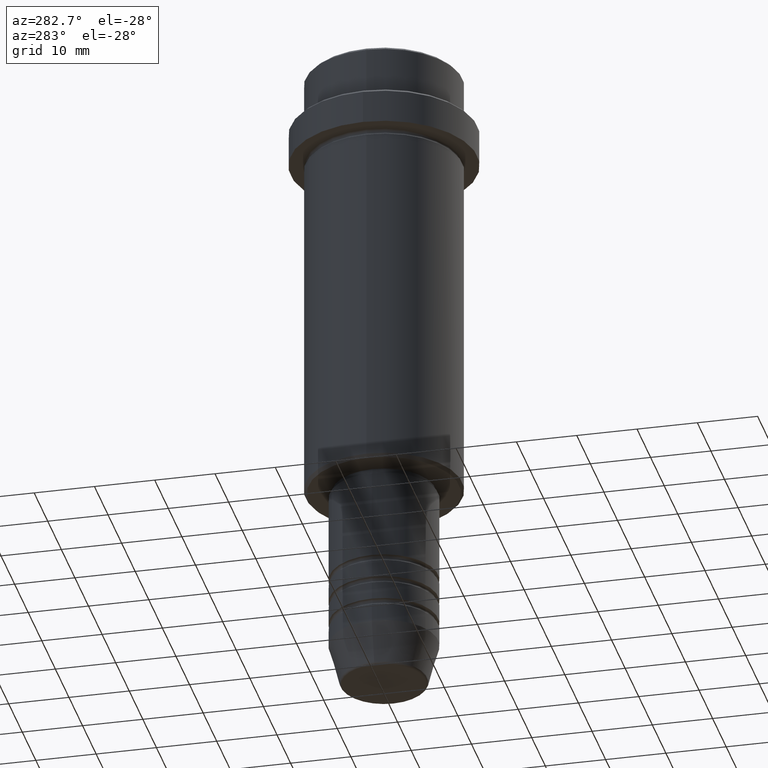
[diagram: clean part render]
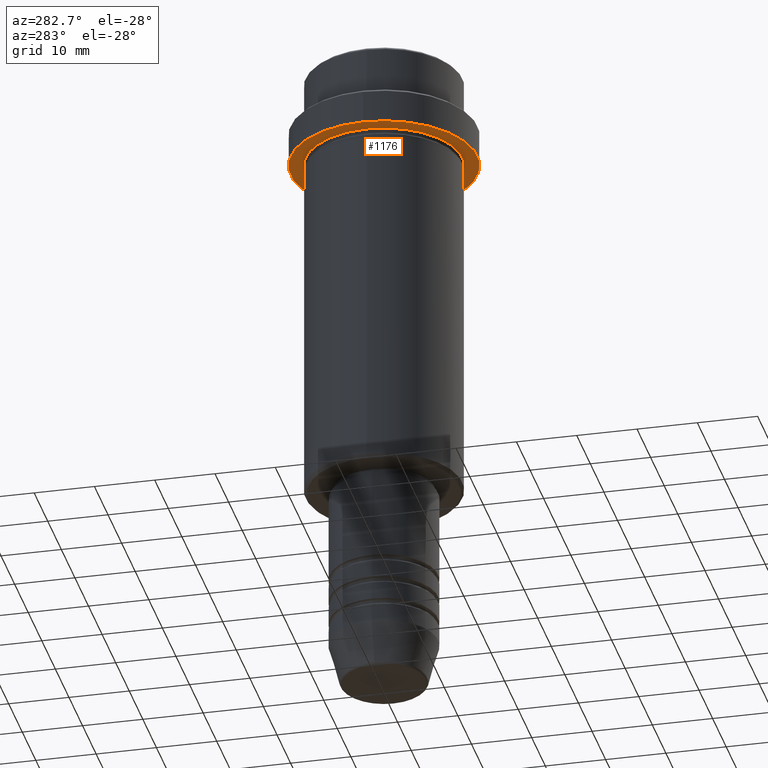
[diagram: same view with one face highlighted and labeled with its STEP entity id]
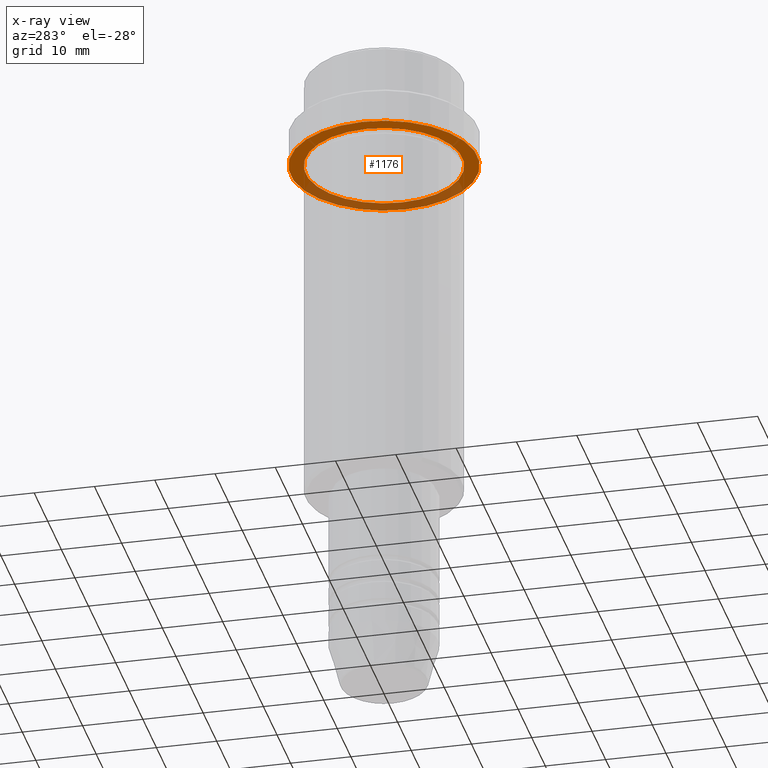
[diagram: x-ray of the same camera — body ghosted, the highlighted face saturated]
A machine part, auxiliary view. The second image highlights one B-rep face of the part: STEP entity #1176.
The next image is the same camera in x-ray: the body ghosted, the highlighted face saturated — about 34% of this face is hidden behind the body in this view.
In plain terms, the highlighted planar face has unit normal (0, 0, -1).
Its self-contained STEP definition (entity closure, byte-faithful):
#19 = EDGE_LOOP ( 'NONE', ( #605, #766 ) ) ;
#31 = CARTESIAN_POINT ( 'NONE',  ( -12.99999999999999645, 0.000000000000000000, -15.00000000000000000 ) ) ;
#34 = ORIENTED_EDGE ( 'NONE', *, *, #1294, .F. ) ;
#95 = CIRCLE ( 'NONE', #385, 12.99999999999999645 ) ;
#96 = DIRECTION ( 'NONE',  ( 1.000000000000000000, 0.000000000000000000, 0.000000000000000000 ) ) ;
#102 = EDGE_CURVE ( 'NONE', #917, #662, #1075, .T. ) ;
#110 = DIRECTION ( 'NONE',  ( 1.000000000000000000, 0.000000000000000000, 0.000000000000000000 ) ) ;
#111 = CIRCLE ( 'NONE', #906, 15.50000000000000000 ) ;
#118 = DIRECTION ( 'NONE',  ( -0.000000000000000000, -0.000000000000000000, 1.000000000000000000 ) ) ;
#177 = DIRECTION ( 'NONE',  ( -0.000000000000000000, -0.000000000000000000, 1.000000000000000000 ) ) ;
#194 = EDGE_LOOP ( 'NONE', ( #34, #939 ) ) ;
#205 = CIRCLE ( 'NONE', #271, 15.50000000000000000 ) ;
#221 = DIRECTION ( 'NONE',  ( -0.000000000000000000, -0.000000000000000000, 1.000000000000000000 ) ) ;
#271 = AXIS2_PLACEMENT_3D ( 'NONE', #1179, #177, #96 ) ;
#310 = DIRECTION ( 'NONE',  ( -1.000000000000000000, 0.000000000000000000, 0.000000000000000000 ) ) ;
#365 = DIRECTION ( 'NONE',  ( 0.000000000000000000, 0.000000000000000000, -1.000000000000000000 ) ) ;
#385 = AXIS2_PLACEMENT_3D ( 'NONE', #942, #970, #310 ) ;
#499 = FACE_OUTER_BOUND ( 'NONE', #194, .T. ) ;
#555 = EDGE_CURVE ( 'NONE', #1253, #836, #111, .T. ) ;
#581 = CARTESIAN_POINT ( 'NONE',  ( 0.000000000000000000, 15.50000000000000000, -15.00000000000000000 ) ) ;
#605 = ORIENTED_EDGE ( 'NONE', *, *, #1264, .T. ) ;
#662 = VERTEX_POINT ( 'NONE', #31 ) ;
#681 = AXIS2_PLACEMENT_3D ( 'NONE', #581, #365, #821 ) ;
#739 = CARTESIAN_POINT ( 'NONE',  ( -15.50000000000000000, 1.898202538678397557E-15, -15.00000000000000000 ) ) ;
#757 = CARTESIAN_POINT ( 'NONE',  ( 0.000000000000000000, 0.000000000000000000, -15.00000000000000000 ) ) ;
#766 = ORIENTED_EDGE ( 'NONE', *, *, #102, .T. ) ;
#821 = DIRECTION ( 'NONE',  ( -1.000000000000000000, 0.000000000000000000, -0.000000000000000000 ) ) ;
#836 = VERTEX_POINT ( 'NONE', #1172 ) ;
#848 = CARTESIAN_POINT ( 'NONE',  ( 12.99999999999999645, 1.592040838891558701E-15, -15.00000000000000000 ) ) ;
#906 = AXIS2_PLACEMENT_3D ( 'NONE', #1308, #118, #110 ) ;
#912 = FACE_BOUND ( 'NONE', #19, .T. ) ;
#917 = VERTEX_POINT ( 'NONE', #848 ) ;
#939 = ORIENTED_EDGE ( 'NONE', *, *, #555, .F. ) ;
#942 = CARTESIAN_POINT ( 'NONE',  ( 0.000000000000000000, 0.000000000000000000, -15.00000000000000000 ) ) ;
#970 = DIRECTION ( 'NONE',  ( -0.000000000000000000, -0.000000000000000000, 1.000000000000000000 ) ) ;
#984 = DIRECTION ( 'NONE',  ( -1.000000000000000000, 0.000000000000000000, 0.000000000000000000 ) ) ;
#1075 = CIRCLE ( 'NONE', #1276, 12.99999999999999645 ) ;
#1172 = CARTESIAN_POINT ( 'NONE',  ( 15.50000000000000000, 0.000000000000000000, -15.00000000000000000 ) ) ;
#1176 = ADVANCED_FACE ( 'NONE', ( #912, #499 ), #1348, .T. ) ;
#1179 = CARTESIAN_POINT ( 'NONE',  ( 0.000000000000000000, 0.000000000000000000, -15.00000000000000000 ) ) ;
#1253 = VERTEX_POINT ( 'NONE', #739 ) ;
#1264 = EDGE_CURVE ( 'NONE', #662, #917, #95, .T. ) ;
#1276 = AXIS2_PLACEMENT_3D ( 'NONE', #757, #221, #984 ) ;
#1294 = EDGE_CURVE ( 'NONE', #836, #1253, #205, .T. ) ;
#1308 = CARTESIAN_POINT ( 'NONE',  ( 0.000000000000000000, 0.000000000000000000, -15.00000000000000000 ) ) ;
#1348 = PLANE ( 'NONE',  #681 ) ;